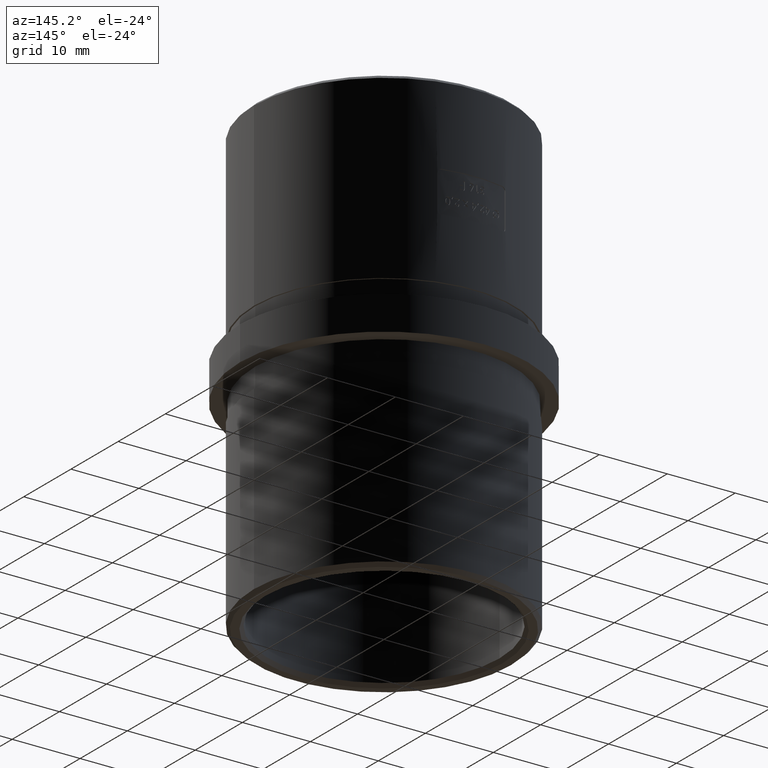
[diagram: clean part render]
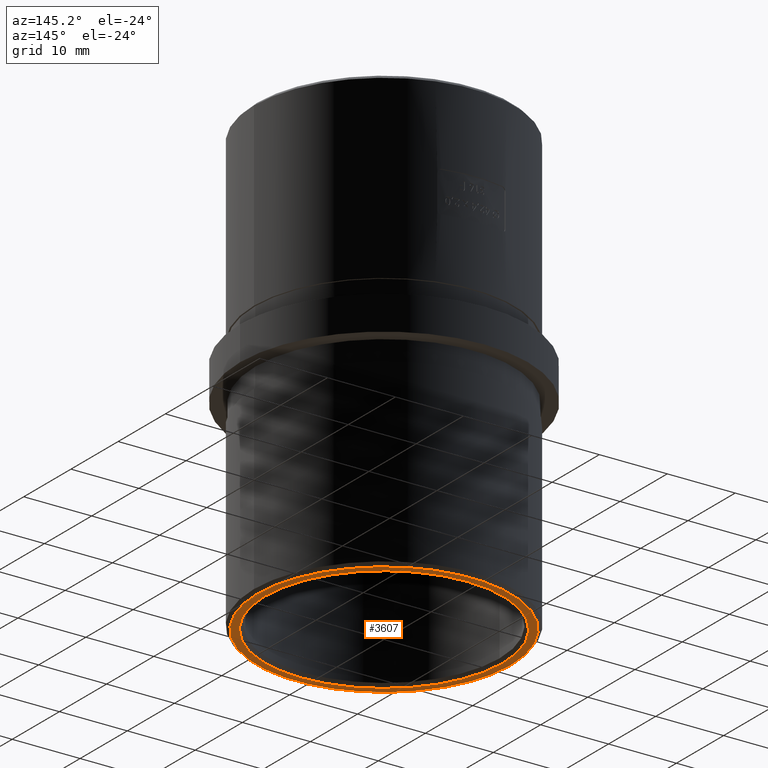
[diagram: same view with one face highlighted and labeled with its STEP entity id]
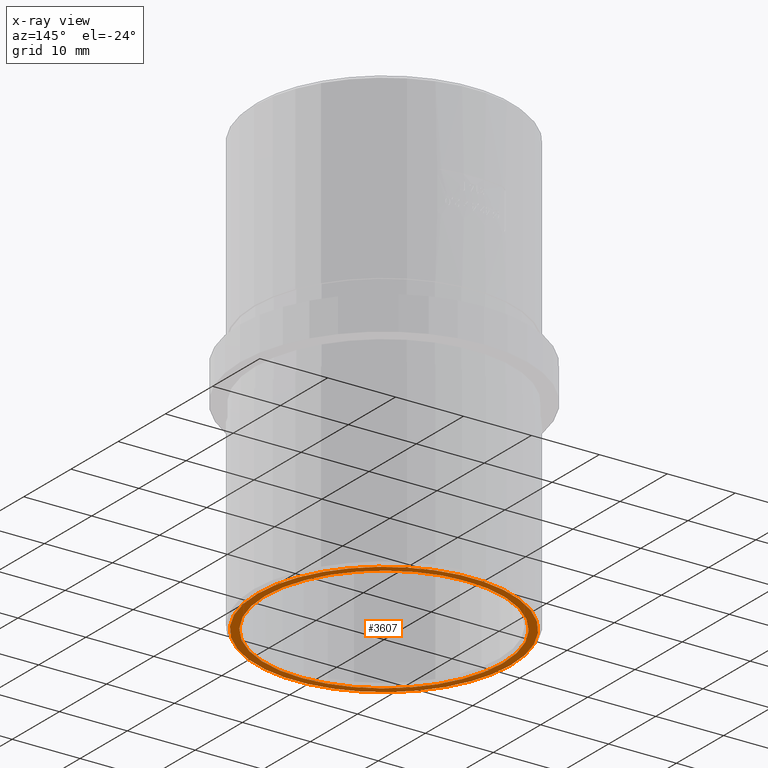
[diagram: x-ray of the same camera — body ghosted, the highlighted face saturated]
A machine part, auxiliary view. The second image highlights one B-rep face of the part: STEP entity #3607.
The next image is the same camera in x-ray: the body ghosted, the highlighted face saturated — about 0% of this face is hidden behind the body in this view.
In plain terms, the highlighted planar face has unit normal (0, 0, -1).
Its self-contained STEP definition (entity closure, byte-faithful):
#221 = DIRECTION ( 'NONE',  ( -1.000000000000000000, 0.0000000000000000000, 0.0000000000000000000 ) ) ;
#284 = CARTESIAN_POINT ( 'NONE',  ( 0.0000000000000000000, 0.0000000000000000000, -32.50000000000000000 ) ) ;
#388 = CARTESIAN_POINT ( 'NONE',  ( -17.49999999999999600, 0.0000000000000000000, -32.50000000000000000 ) ) ;
#744 = EDGE_LOOP ( 'NONE', ( #2492, #16431 ) ) ;
#1795 = DIRECTION ( 'NONE',  ( 1.000000000000000000, 0.0000000000000000000, 0.0000000000000000000 ) ) ;
#1922 = DIRECTION ( 'NONE',  ( 0.0000000000000000000, 0.0000000000000000000, -1.000000000000000000 ) ) ;
#2492 = ORIENTED_EDGE ( 'NONE', *, *, #11003, .T. ) ;
#2565 = AXIS2_PLACEMENT_3D ( 'NONE', #16439, #5975, #221 ) ;
#2753 = CIRCLE ( 'NONE', #5814, 17.49999999999999600 ) ;
#3029 = VERTEX_POINT ( 'NONE', #9720 ) ;
#3143 = AXIS2_PLACEMENT_3D ( 'NONE', #5605, #8691, #6942 ) ;
#3226 = DIRECTION ( 'NONE',  ( -1.000000000000000000, 0.0000000000000000000, 0.0000000000000000000 ) ) ;
#3607 = ADVANCED_FACE ( 'NONE', ( #12823, #8466 ), #16535, .T. ) ;
#3686 = VERTEX_POINT ( 'NONE', #388 ) ;
#4536 = CIRCLE ( 'NONE', #8949, 17.49999999999999600 ) ;
#4837 = EDGE_CURVE ( 'NONE', #5496, #3686, #4536, .T. ) ;
#5397 = AXIS2_PLACEMENT_3D ( 'NONE', #9219, #1922, #1795 ) ;
#5496 = VERTEX_POINT ( 'NONE', #10575 ) ;
#5605 = CARTESIAN_POINT ( 'NONE',  ( 0.0000000000000000000, 0.0000000000000000000, -32.50000000000000000 ) ) ;
#5814 = AXIS2_PLACEMENT_3D ( 'NONE', #284, #14885, #3226 ) ;
#5975 = DIRECTION ( 'NONE',  ( 0.0000000000000000000, 0.0000000000000000000, -1.000000000000000000 ) ) ;
#6942 = DIRECTION ( 'NONE',  ( -1.000000000000000000, 0.0000000000000000000, 0.0000000000000000000 ) ) ;
#7635 = DIRECTION ( 'NONE',  ( -1.000000000000000000, 0.0000000000000000000, 0.0000000000000000000 ) ) ;
#7762 = EDGE_CURVE ( 'NONE', #18858, #3029, #10101, .T. ) ;
#7816 = EDGE_LOOP ( 'NONE', ( #17619, #17400 ) ) ;
#8409 = CARTESIAN_POINT ( 'NONE',  ( -18.64999999999999900, 2.314582450388497600E-015, -32.50000000000000000 ) ) ;
#8466 = FACE_BOUND ( 'NONE', #7816, .T. ) ;
#8691 = DIRECTION ( 'NONE',  ( 0.0000000000000000000, 0.0000000000000000000, -1.000000000000000000 ) ) ;
#8949 = AXIS2_PLACEMENT_3D ( 'NONE', #17955, #11994, #7635 ) ;
#9219 = CARTESIAN_POINT ( 'NONE',  ( 0.0000000000000000000, 0.0000000000000000000, -32.50000000000000000 ) ) ;
#9720 = CARTESIAN_POINT ( 'NONE',  ( 18.64999999999999900, 0.0000000000000000000, -32.50000000000000000 ) ) ;
#10101 = CIRCLE ( 'NONE', #3143, 18.64999999999999900 ) ;
#10575 = CARTESIAN_POINT ( 'NONE',  ( 17.49999999999999600, 2.143131898507867500E-015, -32.50000000000000000 ) ) ;
#11003 = EDGE_CURVE ( 'NONE', #3029, #18858, #17770, .T. ) ;
#11994 = DIRECTION ( 'NONE',  ( -0.0000000000000000000, -0.0000000000000000000, 1.000000000000000000 ) ) ;
#12823 = FACE_OUTER_BOUND ( 'NONE', #744, .T. ) ;
#14301 = EDGE_CURVE ( 'NONE', #3686, #5496, #2753, .T. ) ;
#14885 = DIRECTION ( 'NONE',  ( -0.0000000000000000000, -0.0000000000000000000, 1.000000000000000000 ) ) ;
#16431 = ORIENTED_EDGE ( 'NONE', *, *, #7762, .T. ) ;
#16439 = CARTESIAN_POINT ( 'NONE',  ( 0.0000000000000000000, 0.0000000000000000000, -32.50000000000000000 ) ) ;
#16535 = PLANE ( 'NONE',  #5397 ) ;
#17400 = ORIENTED_EDGE ( 'NONE', *, *, #4837, .T. ) ;
#17619 = ORIENTED_EDGE ( 'NONE', *, *, #14301, .T. ) ;
#17770 = CIRCLE ( 'NONE', #2565, 18.64999999999999900 ) ;
#17955 = CARTESIAN_POINT ( 'NONE',  ( 0.0000000000000000000, 0.0000000000000000000, -32.50000000000000000 ) ) ;
#18858 = VERTEX_POINT ( 'NONE', #8409 ) ;